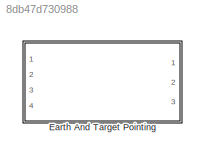
MODEL slx_8db47d730988
KIND library
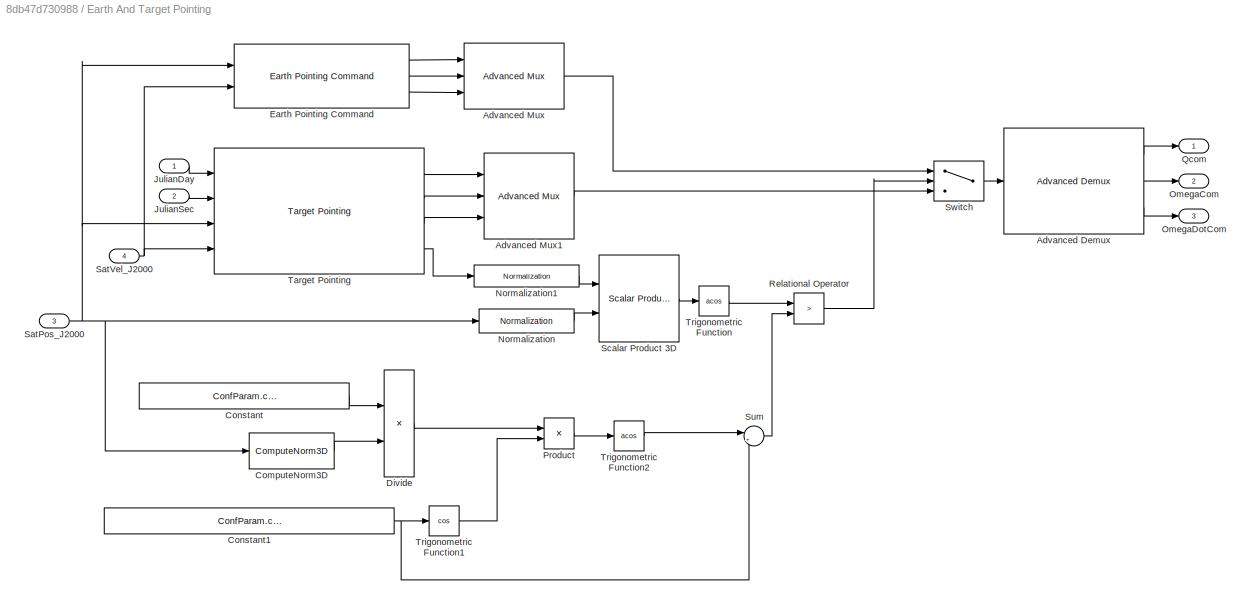
BLOCK [SubSystem] Earth And Target Pointing
  Ports = [4, 3]
  RequestExecContextInheritance = off
BLOCK [Reference] Earth And Target Pointing/Advanced Demux  REF=AdvancedDemux/Advanced Demux
  Ports = [1, 3]
  SourceBlock = AdvancedDemux/Advanced Demux
  SourceType = SubSystem
BLOCK [Reference] Earth And Target Pointing/Advanced Mux  REF=AdvancedMux/Advanced Mux
  Ports = [3, 1]
  SourceBlock = AdvancedMux/Advanced Mux
  SourceType = SubSystem
BLOCK [Reference] Earth And Target Pointing/Advanced Mux1  REF=AdvancedMux/Advanced Mux
  Ports = [3, 1]
  SourceBlock = AdvancedMux/Advanced Mux
  SourceType = SubSystem
BLOCK [Reference] Earth And Target Pointing/ComputeNorm3D  REF=ComputeNorm3D/ComputeNorm3D
  Ports = [1, 1]
  SourceBlock = ComputeNorm3D/ComputeNorm3D
  SourceType = SubSystem
BLOCK [Constant] Earth And Target Pointing/Constant
  Value = ConfParam.confEarthAndTargetPointing.d
BLOCK [Constant] Earth And Target Pointing/Constant1
  Value = ConfParam.confEarthAndTargetPointing.VisionAngle*pi/180
BLOCK [Product] Earth And Target Pointing/Divide
  InputSameDT = off
  Inputs = */
  OutDataTypeStr = Inherit: Inherit via internal rule
  Ports = [2, 1]
  RndMeth = Floor
  SaturateOnIntegerOverflow = off
BLOCK [Reference] Earth And Target Pointing/Earth Pointing Command   REF=EarthPointing/Earth Pointing Command
  Ports = [2, 3]
  SourceBlock = EarthPointing/Earth Pointing Command
  SourceType = SubSystem
BLOCK [Inport] Earth And Target Pointing/JulianDay
  IconDisplay = Port number
BLOCK [Inport] Earth And Target Pointing/JulianSec
  IconDisplay = Port number
  Port = 2
BLOCK [Reference] Earth And Target Pointing/Normalization  REF=Normalization/Normalization
  Ports = [1, 1]
  SourceBlock = Normalization/Normalization
  SourceType = SubSystem
BLOCK [Reference] Earth And Target Pointing/Normalization1  REF=Normalization/Normalization
  Ports = [1, 1]
  SourceBlock = Normalization/Normalization
  SourceType = SubSystem
BLOCK [Outport] Earth And Target Pointing/OmegaCom
  IconDisplay = Port number
  Port = 2
BLOCK [Outport] Earth And Target Pointing/OmegaDotCom
  IconDisplay = Port number
  Port = 3
BLOCK [Product] Earth And Target Pointing/Product
  InputSameDT = off
  OutDataTypeStr = Inherit: Inherit via internal rule
  Ports = [2, 1]
  RndMeth = Floor
  SaturateOnIntegerOverflow = off
BLOCK [Outport] Earth And Target Pointing/Qcom
  IconDisplay = Port number
BLOCK [RelationalOperator] Earth And Target Pointing/Relational Operator
  InputSameDT = off
  Operator = >
  OutDataTypeStr = boolean
  Ports = [2, 1]
BLOCK [Inport] Earth And Target Pointing/SatPos_J2000
  IconDisplay = Port number
  Port = 3
BLOCK [Inport] Earth And Target Pointing/SatVel_J2000
  IconDisplay = Port number
  Port = 4
BLOCK [Reference] Earth And Target Pointing/Scalar Product 3D  REF=ScalarProduct3D/Scalar Product 3D
  Ports = [2, 1]
  SourceBlock = ScalarProduct3D/Scalar Product 3D
  SourceType = SubSystem
BLOCK [Sum] Earth And Target Pointing/Sum
  IconShape = round
  InputSameDT = off
  Inputs = |+-
  OutDataTypeStr = Inherit: Inherit via internal rule
  Ports = [2, 1]
  SaturateOnIntegerOverflow = off
BLOCK [Switch] Earth And Target Pointing/Switch
  Criteria = u2 > Threshold
  InputSameDT = off
  SaturateOnIntegerOverflow = off
BLOCK [Reference] Earth And Target Pointing/Target Pointing  REF=TargetPointing/Target Pointing
  Ports = [4, 4]
  SourceBlock = TargetPointing/Target Pointing
  SourceType = SubSystem
BLOCK [Trigonometry] Earth And Target Pointing/Trigonometric Function
  Operator = acos
  Ports = [1, 1]
BLOCK [Trigonometry] Earth And Target Pointing/Trigonometric Function1
  Operator = cos
  Ports = [1, 1]
BLOCK [Trigonometry] Earth And Target Pointing/Trigonometric Function2
  Operator = acos
  Ports = [1, 1]
LINE Earth And Target Pointing/Advanced Demux:1 -> Earth And Target Pointing/Qcom:1
LINE Earth And Target Pointing/Advanced Demux:2 -> Earth And Target Pointing/OmegaCom:1
LINE Earth And Target Pointing/Advanced Demux:3 -> Earth And Target Pointing/OmegaDotCom:1
LINE Earth And Target Pointing/Advanced Mux1:1 -> Earth And Target Pointing/Switch:3
LINE Earth And Target Pointing/Advanced Mux:1 -> Earth And Target Pointing/Switch:1
LINE Earth And Target Pointing/ComputeNorm3D:1 -> Earth And Target Pointing/Divide:2
NET Earth And Target Pointing/Constant1:1 -> Earth And Target Pointing/Sum:2, Earth And Target Pointing/Trigonometric Function1:1
LINE Earth And Target Pointing/Constant:1 -> Earth And Target Pointing/Divide:1
LINE Earth And Target Pointing/Divide:1 -> Earth And Target Pointing/Product:1
LINE Earth And Target Pointing/Earth Pointing Command :1 -> Earth And Target Pointing/Advanced Mux:1
LINE Earth And Target Pointing/Earth Pointing Command :2 -> Earth And Target Pointing/Advanced Mux:2
LINE Earth And Target Pointing/Earth Pointing Command :3 -> Earth And Target Pointing/Advanced Mux:3
LINE Earth And Target Pointing/JulianDay:1 -> Earth And Target Pointing/Target Pointing:1
LINE Earth And Target Pointing/JulianSec:1 -> Earth And Target Pointing/Target Pointing:2
LINE Earth And Target Pointing/Normalization1:1 -> Earth And Target Pointing/Scalar Product 3D:1
LINE Earth And Target Pointing/Normalization:1 -> Earth And Target Pointing/Scalar Product 3D:2
LINE Earth And Target Pointing/Product:1 -> Earth And Target Pointing/Trigonometric Function2:1
LINE Earth And Target Pointing/Relational Operator:1 -> Earth And Target Pointing/Switch:2
NET Earth And Target Pointing/SatPos_J2000:1 -> Earth And Target Pointing/ComputeNorm3D:1, Earth And Target Pointing/Earth Pointing Command :1, Earth And Target Pointing/Normalization:1, Earth And Target Pointing/Target Pointing:3
NET Earth And Target Pointing/SatVel_J2000:1 -> Earth And Target Pointing/Earth Pointing Command :2, Earth And Target Pointing/Target Pointing:4
LINE Earth And Target Pointing/Scalar Product 3D:1 -> Earth And Target Pointing/Trigonometric Function:1
LINE Earth And Target Pointing/Sum:1 -> Earth And Target Pointing/Relational Operator:2
LINE Earth And Target Pointing/Switch:1 -> Earth And Target Pointing/Advanced Demux:1
LINE Earth And Target Pointing/Target Pointing:1 -> Earth And Target Pointing/Advanced Mux1:1
LINE Earth And Target Pointing/Target Pointing:2 -> Earth And Target Pointing/Advanced Mux1:2
LINE Earth And Target Pointing/Target Pointing:3 -> Earth And Target Pointing/Advanced Mux1:3
LINE Earth And Target Pointing/Target Pointing:4 -> Earth And Target Pointing/Normalization1:1
LINE Earth And Target Pointing/Trigonometric Function1:1 -> Earth And Target Pointing/Product:2
LINE Earth And Target Pointing/Trigonometric Function2:1 -> Earth And Target Pointing/Sum:1
LINE Earth And Target Pointing/Trigonometric Function:1 -> Earth And Target Pointing/Relational Operator:1
note: NET lines group one-source signal fan-out (src -> all destinations, sorted); 1:1 wires keep LINE
